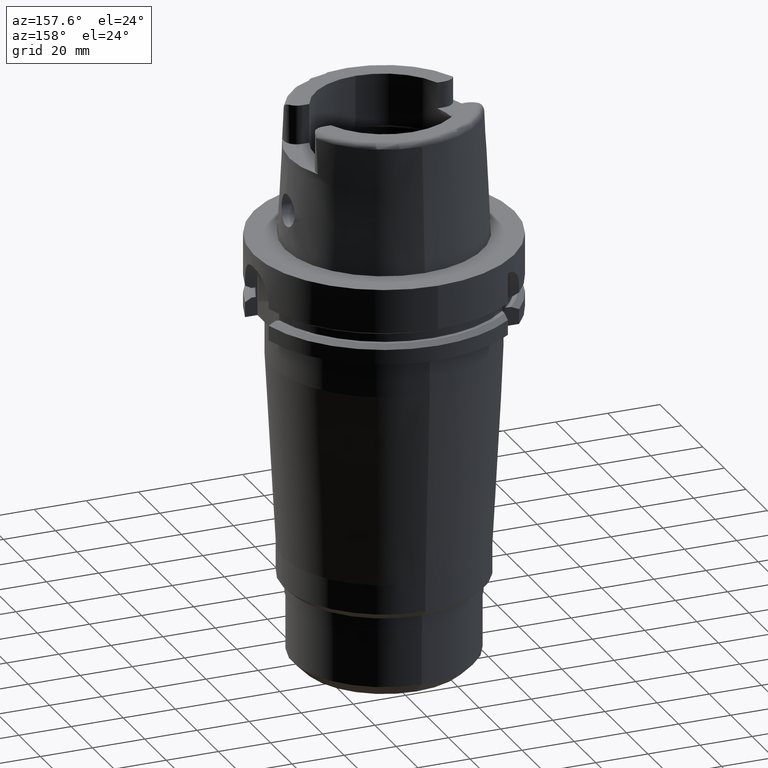
[diagram: clean part render]
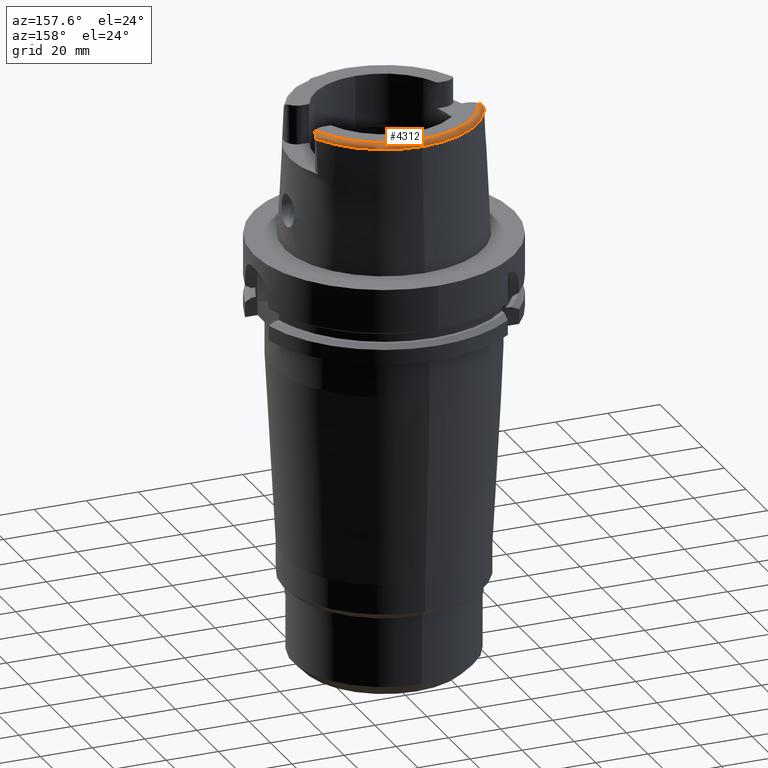
[diagram: same view with one face highlighted and labeled with its STEP entity id]
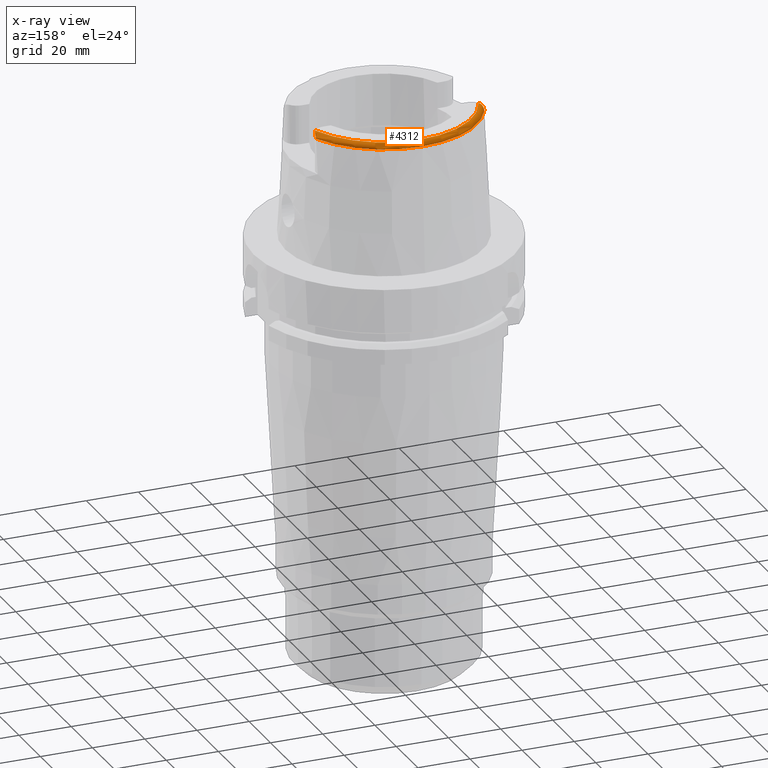
[diagram: x-ray of the same camera — body ghosted, the highlighted face saturated]
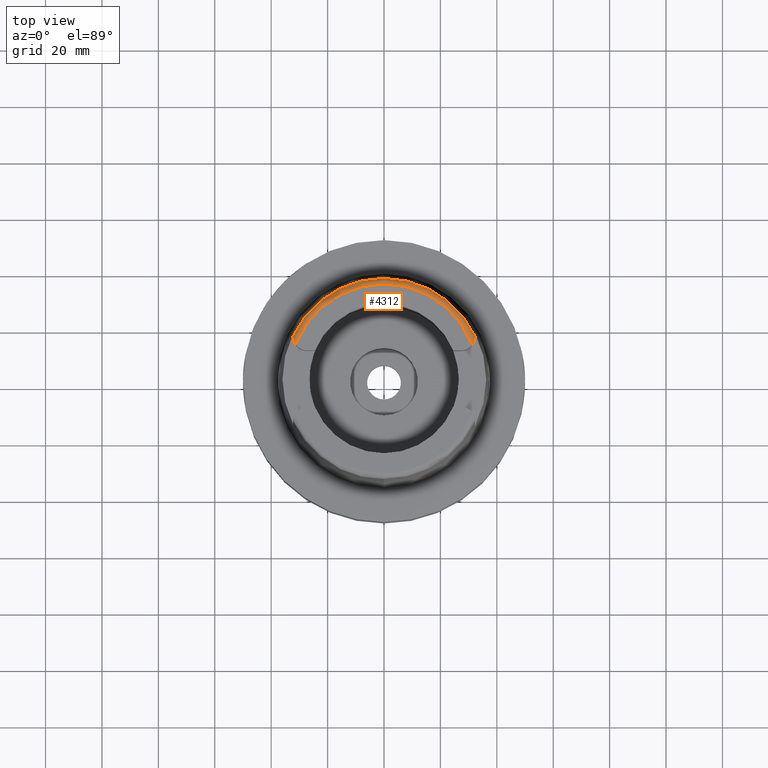
[diagram: same view with one face highlighted and labeled with its STEP entity id]
A machine part, auxiliary view. The second image highlights one B-rep face of the part: STEP entity #4312.
The next image is the same camera in x-ray: the body ghosted, the highlighted face saturated — about 0% of this face is hidden behind the body in this view.
A second angle (top view) of the same face is appended — the face is thin or edge-on in the first view.
In plain terms, the highlighted toroidal blend (fillet) surface has major radius 33.5974 mm and minor (blend) radius 2 mm.
Its self-contained STEP definition (entity closure, byte-faithful):
#26=CARTESIAN_POINT('',(0.E0,0.E0,5.E1));
#27=DIRECTION('',(0.E0,0.E0,-1.E0));
#28=DIRECTION('',(-9.332215253018E-1,3.593015233942E-1,0.E0));
#29=AXIS2_PLACEMENT_3D('',#26,#27,#28);
#2257=CARTESIAN_POINT('',(-3.135385269249E1,1.207161079257E1,5.E1));
#2258=CARTESIAN_POINT('',(-3.142531668133E1,1.217262665071E1,5.E1));
#2259=CARTESIAN_POINT('',(-3.156742823613E1,1.238916330672E1,4.998462082619E1));
#2260=CARTESIAN_POINT('',(-3.177588606013E1,1.277599494229E1,4.990197196299E1));
#2261=CARTESIAN_POINT('',(-3.194765609054E1,1.318072847964E1,4.976405168562E1));
#2262=CARTESIAN_POINT('',(-3.207551263090E1,1.357702509927E1,4.958499278018E1));
#2263=CARTESIAN_POINT('',(-3.215906474191E1,1.393210745156E1,4.938750793604E1));
#2264=CARTESIAN_POINT('',(-3.221006691853E1,1.424465168096E1,4.918015817748E1));
#2265=CARTESIAN_POINT('',(-3.223727222127E1,1.451073311691E1,4.896949380199E1));
#2266=CARTESIAN_POINT('',(-3.224870603662E1,1.473139857535E1,4.875554115786E1));
#2267=CARTESIAN_POINT('',(-3.225E1,1.484283940489E1,4.861566203186E1));
#2268=CARTESIAN_POINT('',(-3.225E1,1.489E1,4.854599893822E1));
#2273=CARTESIAN_POINT('',(-3.225E1,1.489E1,4.854599893822E1));
#2274=CARTESIAN_POINT('',(-3.225E1,1.492390722876E1,4.849591300426E1));
#2275=CARTESIAN_POINT('',(-3.225000018245E1,1.498153997018E1,4.839574783326E1));
#2276=CARTESIAN_POINT('',(-3.224999936141E1,1.503932247487E1,4.824460996581E1));
#2277=CARTESIAN_POINT('',(-3.225000136841E1,1.505879267348E1,4.814765338796E1));
#2278=CARTESIAN_POINT('',(-3.225000136841E1,1.506443228469E1,4.809991919862E1));
#2283=CARTESIAN_POINT('',(0.E0,0.E0,4.809987853799E1));
#2284=DIRECTION('',(0.E0,0.E0,-1.E0));
#2285=DIRECTION('',(-9.060276961631E-1,4.232183996300E-1,0.E0));
#2286=AXIS2_PLACEMENT_3D('',#2283,#2284,#2285);
#2291=CARTESIAN_POINT('',(0.E0,0.E0,4.809987853799E1));
#2292=DIRECTION('',(0.E0,0.E0,-1.E0));
#2293=DIRECTION('',(0.E0,1.E0,0.E0));
#2294=AXIS2_PLACEMENT_3D('',#2291,#2292,#2293);
#2299=CARTESIAN_POINT('',(3.224998031234E1,1.506460254275E1,4.809931727647E1));
#2300=CARTESIAN_POINT('',(3.224998031234E1,1.505854123404E1,4.815062075231E1));
#2301=CARTESIAN_POINT('',(3.225000918757E1,1.503762023142E1,4.825053285107E1));
#2302=CARTESIAN_POINT('',(3.224999737498E1,1.497890212505E1,4.840088984761E1));
#2303=CARTESIAN_POINT('',(3.225E1,1.492253149078E1,4.849794517038E1));
#2304=CARTESIAN_POINT('',(3.225E1,1.489E1,4.854599893822E1));
#2309=CARTESIAN_POINT('',(3.225E1,1.489E1,4.854599893822E1));
#2310=CARTESIAN_POINT('',(3.225E1,1.484230475069E1,4.861645179427E1));
#2311=CARTESIAN_POINT('',(3.224866664234E1,1.472989002304E1,4.875720455429E1));
#2312=CARTESIAN_POINT('',(3.223715422292E1,1.450939285395E1,4.897059560001E1));
#2313=CARTESIAN_POINT('',(3.221000890175E1,1.424437184278E1,4.918031761961E1));
#2314=CARTESIAN_POINT('',(3.215913412684E1,1.393248920874E1,4.938726986438E1));
#2315=CARTESIAN_POINT('',(3.207553529693E1,1.357697862502E1,4.958505780796E1));
#2316=CARTESIAN_POINT('',(3.194723273098E1,1.317959539686E1,4.976449974385E1));
#2317=CARTESIAN_POINT('',(3.177577679655E1,1.277581936523E1,4.990199404827E1));
#2318=CARTESIAN_POINT('',(3.156730475285E1,1.238894827256E1,4.998465708563E1));
#2319=CARTESIAN_POINT('',(3.142527774818E1,1.217257161788E1,5.E1));
#2320=CARTESIAN_POINT('',(3.135385269249E1,1.207161079257E1,5.E1));
#2326=CARTESIAN_POINT('',(-3.135385269249E1,1.207161079257E1,5.E1));
#2328=VERTEX_POINT('',#2326);
#2329=CARTESIAN_POINT('',(3.135385269249E1,1.207161079257E1,5.E1));
#2330=VERTEX_POINT('',#2329);
#2357=CARTESIAN_POINT('',(-3.225E1,1.489E1,4.854599893822E1));
#2358=VERTEX_POINT('',#2357);
#2376=VERTEX_POINT('',#2278);
#2377=CARTESIAN_POINT('',(0.E0,3.559494289391E1,4.809987853799E1));
#2378=VERTEX_POINT('',#2377);
#2379=CARTESIAN_POINT('',(3.224994093704E1,1.506456999646E1,4.809987853799E1));
#2380=VERTEX_POINT('',#2379);
#2381=VERTEX_POINT('',#2304);
#4296=CARTESIAN_POINT('',(0.E0,0.E0,4.8E1));
#4297=DIRECTION('',(0.E0,0.E0,1.E0));
#4298=DIRECTION('',(-4.184165975220E-4,-9.999999124638E-1,0.E0));
#4299=AXIS2_PLACEMENT_3D('',#4296,#4297,#4298);
#4300=TOROIDAL_SURFACE('',#4299,3.359743838136E1,2.E0);
#4301=ORIENTED_EDGE('',*,*,#2699,.T.);
#4303=ORIENTED_EDGE('',*,*,#4302,.T.);
#4304=ORIENTED_EDGE('',*,*,#2857,.T.);
#4305=ORIENTED_EDGE('',*,*,#2879,.T.);
#4307=ORIENTED_EDGE('',*,*,#4306,.T.);
#4308=ORIENTED_EDGE('',*,*,#4287,.T.);
#4309=ORIENTED_EDGE('',*,*,#2672,.F.);
#4310=EDGE_LOOP('',(#4301,#4303,#4304,#4305,#4307,#4308,#4309));
#4311=FACE_OUTER_BOUND('',#4310,.F.);
#30=CIRCLE('',#29,3.359743838136E1);
#2269=B_SPLINE_CURVE_WITH_KNOTS('',3,(#2257,#2258,#2259,#2260,#2261,#2262,#2263,
#2264,#2265,#2266,#2267,#2268),.UNSPECIFIED.,.F.,.F.,(4,1,1,1,1,1,1,1,1,4),
(0.E0,1.111111111111E-1,2.222222222222E-1,3.333333333333E-1,4.444444444444E-1,
5.555555555556E-1,6.666666666667E-1,7.777777777778E-1,8.888888888889E-1,1.E0),
.UNSPECIFIED.);
#2279=B_SPLINE_CURVE_WITH_KNOTS('',3,(#2273,#2274,#2275,#2276,#2277,#2278),
.UNSPECIFIED.,.F.,.F.,(4,1,1,4),(0.E0,3.333333333333E-1,6.666666666667E-1,1.E0),
.UNSPECIFIED.);
#2287=CIRCLE('',#2286,3.559494289391E1);
#2295=CIRCLE('',#2294,3.559494289391E1);
#2305=B_SPLINE_CURVE_WITH_KNOTS('',3,(#2299,#2300,#2301,#2302,#2303,#2304),
.UNSPECIFIED.,.F.,.F.,(4,1,1,4),(0.E0,3.333333333333E-1,6.666666666667E-1,1.E0),
.UNSPECIFIED.);
#2321=B_SPLINE_CURVE_WITH_KNOTS('',3,(#2309,#2310,#2311,#2312,#2313,#2314,#2315,
#2316,#2317,#2318,#2319,#2320),.UNSPECIFIED.,.F.,.F.,(4,1,1,1,1,1,1,1,1,4),
(0.E0,1.111111111111E-1,2.222222222222E-1,3.333333333333E-1,4.444444444444E-1,
5.555555555556E-1,6.666666666667E-1,7.777777777778E-1,8.888888888889E-1,1.E0),
.UNSPECIFIED.);
#2672=EDGE_CURVE('',#2328,#2330,#30,.T.);
#2699=EDGE_CURVE('',#2328,#2358,#2269,.T.);
#2857=EDGE_CURVE('',#2376,#2378,#2287,.T.);
#2879=EDGE_CURVE('',#2378,#2380,#2295,.T.);
#4287=EDGE_CURVE('',#2381,#2330,#2321,.T.);
#4302=EDGE_CURVE('',#2358,#2376,#2279,.T.);
#4306=EDGE_CURVE('',#2380,#2381,#2305,.T.);
#4312=ADVANCED_FACE('',(#4311),#4300,.T.);